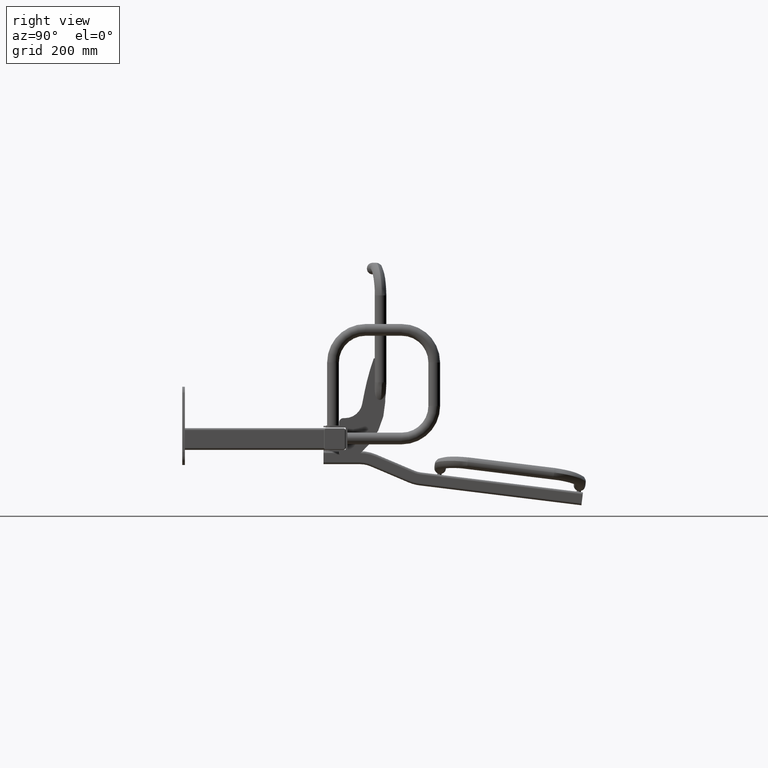
[diagram: clean part render]
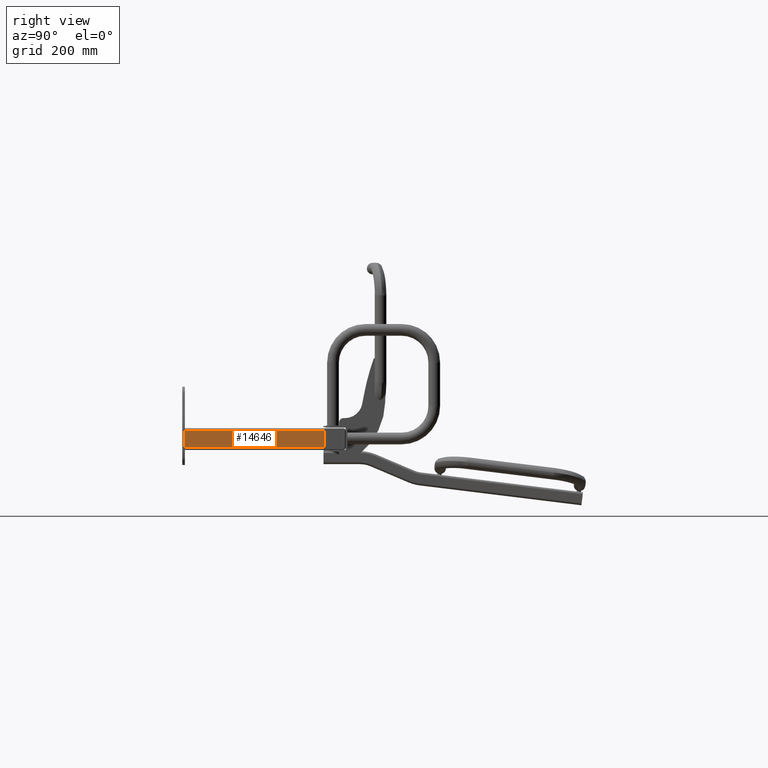
[diagram: same view with one face highlighted and labeled with its STEP entity id]
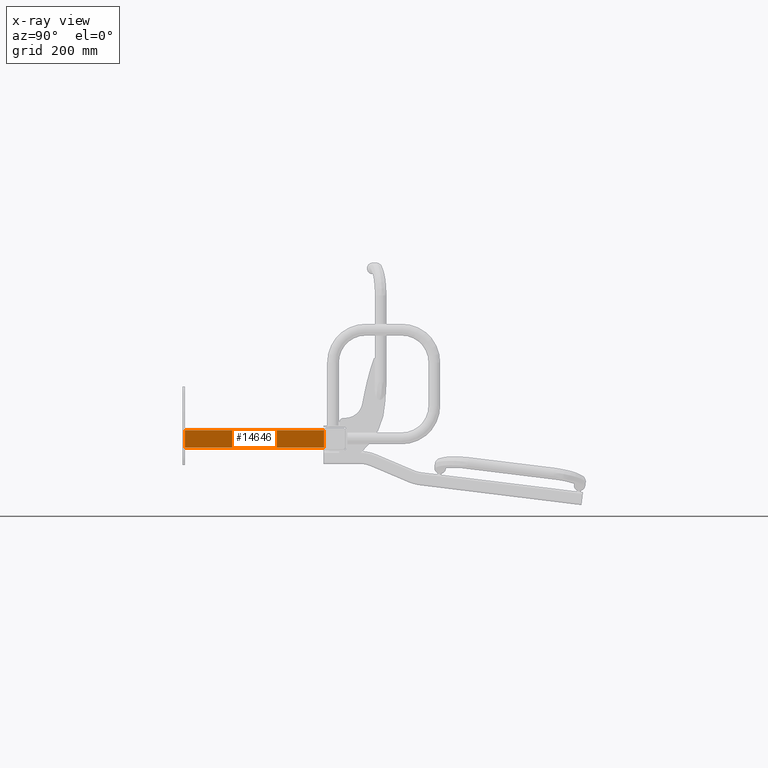
[diagram: x-ray of the same camera — body ghosted, the highlighted face saturated]
A machine part, right view. The second image highlights one B-rep face of the part: STEP entity #14646.
The next image is the same camera in x-ray: the body ghosted, the highlighted face saturated — about 0% of this face is hidden behind the body in this view.
In plain terms, the highlighted planar face has unit normal (-1, 0, 0).
Its self-contained STEP definition (entity closure, byte-faithful):
#865 = CARTESIAN_POINT ( 'NONE',  ( 400.0000000000000600, 326.0000000000000000, -19.99999999999999600 ) ) ;
#871 = CARTESIAN_POINT ( 'NONE',  ( 400.0000000000000000, 6.000000000000000000, 20.00000000000000000 ) ) ;
#880 = CARTESIAN_POINT ( 'NONE',  ( 400.0000000000000000, 6.000000000000000000, 25.00000000000000000 ) ) ;
#881 = DIRECTION ( 'NONE',  ( -0.0000000000000000000, -0.0000000000000000000, -1.000000000000000000 ) ) ;
#882 = DIRECTION ( 'NONE',  ( 1.734723475976807100E-016, 1.000000000000000000, 0.0000000000000000000 ) ) ;
#883 = CARTESIAN_POINT ( 'NONE',  ( 400.0000000000000600, 326.0000000000000000, 25.00000000000000000 ) ) ;
#885 = DIRECTION ( 'NONE',  ( -0.0000000000000000000, -0.0000000000000000000, -1.000000000000000000 ) ) ;
#886 = DIRECTION ( 'NONE',  ( -1.734723475976807100E-016, -1.000000000000000000, -0.0000000000000000000 ) ) ;
#2230 = VERTEX_POINT ( 'NONE', #8939 ) ;
#2240 = VERTEX_POINT ( 'NONE', #8949 ) ;
#2245 = VERTEX_POINT ( 'NONE', #8954 ) ;
#2249 = VERTEX_POINT ( 'NONE', #8958 ) ;
#4652 = ORIENTED_EDGE ( 'NONE', *, *, #17209, .T. ) ;
#4653 = ORIENTED_EDGE ( 'NONE', *, *, #17208, .F. ) ;
#4654 = ORIENTED_EDGE ( 'NONE', *, *, #17207, .T. ) ;
#4655 = ORIENTED_EDGE ( 'NONE', *, *, #17206, .T. ) ;
#8710 = LINE ( 'NONE', #865, #8723 ) ;
#8718 = LINE ( 'NONE', #880, #8721 ) ;
#8720 = LINE ( 'NONE', #871, #8727 ) ;
#8721 = VECTOR ( 'NONE', #881, 1000.000000000000000 ) ;
#8722 = LINE ( 'NONE', #883, #8725 ) ;
#8723 = VECTOR ( 'NONE', #882, 1000.000000000000000 ) ;
#8725 = VECTOR ( 'NONE', #885, 1000.000000000000000 ) ;
#8727 = VECTOR ( 'NONE', #886, 1000.000000000000000 ) ;
#8939 = CARTESIAN_POINT ( 'NONE',  ( 400.0000000000000600, 326.0000000000000000, 20.00000000000000400 ) ) ;
#8949 = CARTESIAN_POINT ( 'NONE',  ( 400.0000000000000000, 6.000000000000000000, 20.00000000000000000 ) ) ;
#8954 = CARTESIAN_POINT ( 'NONE',  ( 400.0000000000000600, 326.0000000000000000, -19.99999999999999600 ) ) ;
#8958 = CARTESIAN_POINT ( 'NONE',  ( 400.0000000000000000, 6.000000000000000000, -19.99999999999999600 ) ) ;
#9411 = AXIS2_PLACEMENT_3D ( 'NONE', #9848, #9858, #9860 ) ;
#9845 = PLANE ( 'NONE',  #9411 ) ;
#9848 = CARTESIAN_POINT ( 'NONE',  ( 400.0000000000000000, 6.000000000000000000, 25.00000000000000000 ) ) ;
#9858 = DIRECTION ( 'NONE',  ( -1.000000000000000000, 1.734723475976807100E-016, 0.0000000000000000000 ) ) ;
#9860 = DIRECTION ( 'NONE',  ( -1.734723475976807100E-016, -1.000000000000000000, 0.0000000000000000000 ) ) ;
#11899 = EDGE_LOOP ( 'NONE', ( #4655, #4654, #4653, #4652 ) ) ;
#14646 = ADVANCED_FACE ( 'NONE', ( #16971 ), #9845, .F. ) ;
#16971 = FACE_OUTER_BOUND ( 'NONE', #11899, .T. ) ;
#17206 = EDGE_CURVE ( 'NONE', #2240, #2249, #8718, .T. ) ;
#17207 = EDGE_CURVE ( 'NONE', #2249, #2245, #8710, .T. ) ;
#17208 = EDGE_CURVE ( 'NONE', #2230, #2245, #8722, .T. ) ;
#17209 = EDGE_CURVE ( 'NONE', #2230, #2240, #8720, .T. ) ;